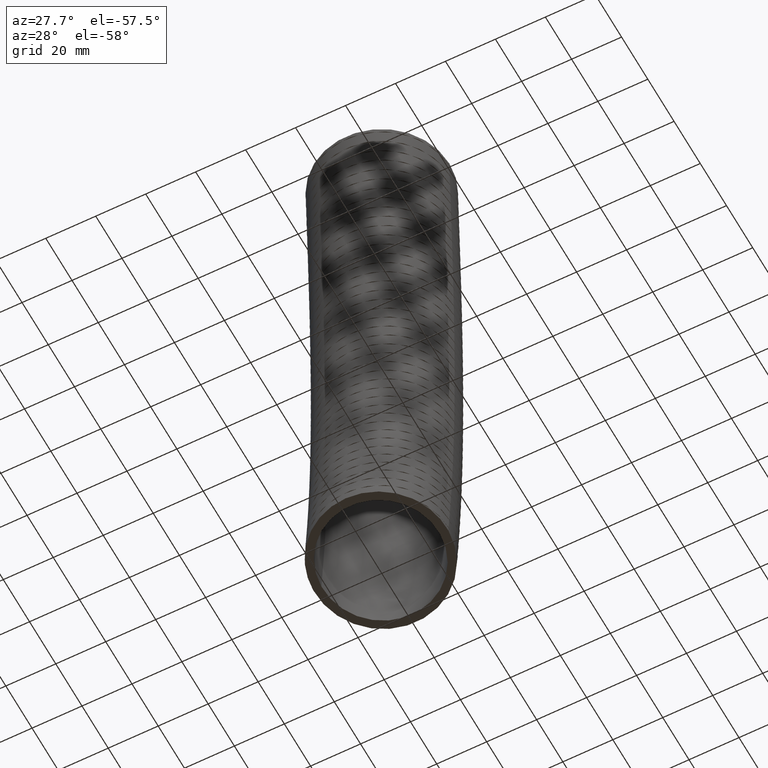
[diagram: clean part render]
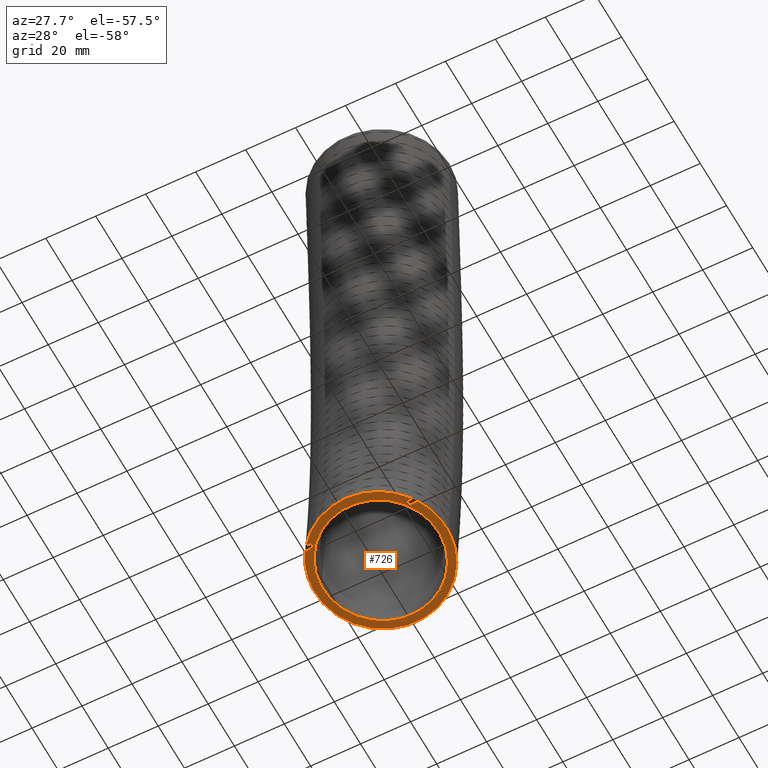
[diagram: same view with one face highlighted and labeled with its STEP entity id]
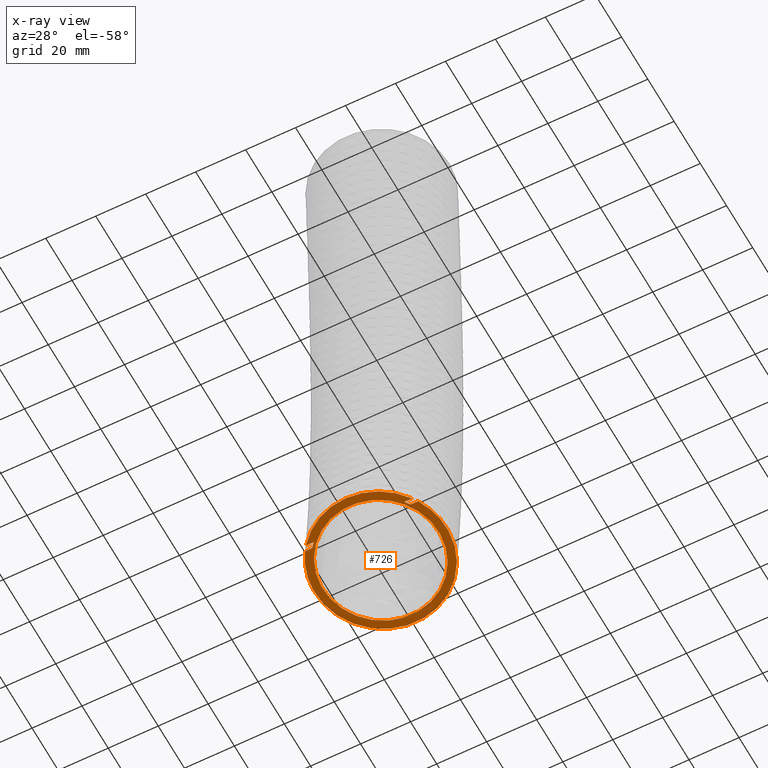
[diagram: x-ray of the same camera — body ghosted, the highlighted face saturated]
A machine part, auxiliary view. The second image highlights one B-rep face of the part: STEP entity #726.
The next image is the same camera in x-ray: the body ghosted, the highlighted face saturated — about 0% of this face is hidden behind the body in this view.
In plain terms, the highlighted planar face has unit normal (0, 0.134, 0.991).
Its self-contained STEP definition (entity closure, byte-faithful):
#600 = VERTEX_POINT ( 'NONE', #6579 ) ;
#617 = VERTEX_POINT ( 'NONE', #6789 ) ;
#622 = EDGE_CURVE ( 'NONE', #630, #617, #7455, .T. ) ;
#630 = VERTEX_POINT ( 'NONE', #7444 ) ;
#651 = EDGE_CURVE ( 'NONE', #654, #600, #7583, .T. ) ;
#654 = VERTEX_POINT ( 'NONE', #7588 ) ;
#685 = EDGE_CURVE ( 'NONE', #686, #654, #7742, .T. ) ;
#686 = VERTEX_POINT ( 'NONE', #7738 ) ;
#716 = ORIENTED_EDGE ( 'NONE', *, *, #7085, .T. ) ;
#717 = EDGE_LOOP ( 'NONE', ( #1886, #1866, #1849, #1852, #1858, #1851, #1952, #1935, #1930, #1921 ) ) ;
#721 = EDGE_CURVE ( 'NONE', #7114, #7100, #7973, .T. ) ;
#723 = ORIENTED_EDGE ( 'NONE', *, *, #721, .T. ) ;
#725 = EDGE_LOOP ( 'NONE', ( #716, #723 ) ) ;
#726 = ADVANCED_FACE ( 'NONE', ( #7968, #7967 ), #7990, .F. ) ;
#727 = EDGE_CURVE ( 'NONE', #731, #686, #7985, .T. ) ;
#731 = VERTEX_POINT ( 'NONE', #7978 ) ;
#1849 = ORIENTED_EDGE ( 'NONE', *, *, #1853, .F. ) ;
#1851 = ORIENTED_EDGE ( 'NONE', *, *, #727, .F. ) ;
#1852 = ORIENTED_EDGE ( 'NONE', *, *, #651, .F. ) ;
#1853 = EDGE_CURVE ( 'NONE', #600, #1857, #8161, .T. ) ;
#1857 = VERTEX_POINT ( 'NONE', #8157 ) ;
#1858 = ORIENTED_EDGE ( 'NONE', *, *, #685, .F. ) ;
#1865 = EDGE_CURVE ( 'NONE', #1867, #630, #8156, .T. ) ;
#1866 = ORIENTED_EDGE ( 'NONE', *, *, #1868, .F. ) ;
#1867 = VERTEX_POINT ( 'NONE', #8152 ) ;
#1868 = EDGE_CURVE ( 'NONE', #1857, #1867, #8149, .T. ) ;
#1886 = ORIENTED_EDGE ( 'NONE', *, *, #1865, .F. ) ;
#1921 = ORIENTED_EDGE ( 'NONE', *, *, #622, .F. ) ;
#1929 = EDGE_CURVE ( 'NONE', #617, #1937, #8288, .T. ) ;
#1930 = ORIENTED_EDGE ( 'NONE', *, *, #1929, .F. ) ;
#1934 = EDGE_CURVE ( 'NONE', #1937, #1956, #2119, .T. ) ;
#1935 = ORIENTED_EDGE ( 'NONE', *, *, #1934, .F. ) ;
#1937 = VERTEX_POINT ( 'NONE', #8438 ) ;
#1945 = EDGE_CURVE ( 'NONE', #1956, #731, #8457, .T. ) ;
#1952 = ORIENTED_EDGE ( 'NONE', *, *, #1945, .F. ) ;
#1956 = VERTEX_POINT ( 'NONE', #8518 ) ;
#2119 =( BOUNDED_CURVE ( )  B_SPLINE_CURVE ( 3, ( #8363, #8362, #8361, #2148 ),
 .UNSPECIFIED., .F., .F. ) 
 B_SPLINE_CURVE_WITH_KNOTS ( ( 4, 4 ),
 ( 0.8268439785480497000, 0.9260890869962005200 ),
 .UNSPECIFIED. ) 
 CURVE ( )  GEOMETRIC_REPRESENTATION_ITEM ( )  RATIONAL_B_SPLINE_CURVE ( ( 1.000000000000000000, 0.9991793691181399800, 0.9991793691181399800, 1.000000000000000000 ) ) 
 REPRESENTATION_ITEM ( '' )  );
#2148 = CARTESIAN_POINT ( 'NONE',  ( 0.7752974674813404300, -0.6082778034935589800, -9.491801248254399000 ) ) ;
#6579 = CARTESIAN_POINT ( 'NONE',  ( -0.8909010816090049400, -0.6082778034935592000, -9.491801248254399000 ) ) ;
#6789 = CARTESIAN_POINT ( 'NONE',  ( 0.8372844202770108900, -0.6822275521257193900, -9.481801248254399200 ) ) ;
#7085 = EDGE_CURVE ( 'NONE', #7100, #7114, #19679, .T. ) ;
#7100 = VERTEX_POINT ( 'NONE', #19693 ) ;
#7114 = VERTEX_POINT ( 'NONE', #19906 ) ;
#7444 = CARTESIAN_POINT ( 'NONE',  ( -0.8372844202770108900, -0.6822275521257193900, -9.481801248254399200 ) ) ;
#7451 = DIRECTION ( 'NONE',  ( 1.000000000000000000, 0.0000000000000000000, 0.0000000000000000000 ) ) ;
#7452 = DIRECTION ( 'NONE',  ( 0.0000000000000000000, 0.1340072641038699800, 0.9909803495364555300 ) ) ;
#7453 = CARTESIAN_POINT ( 'NONE',  ( 0.0000000000000000000, -0.02999999999999988400, -9.569999999999996700 ) ) ;
#7454 = AXIS2_PLACEMENT_3D ( 'NONE', #7453, #7452, #7451 ) ;
#7455 = CIRCLE ( 'NONE', #7454, 1.064999999999999900 ) ;
#7579 = DIRECTION ( 'NONE',  ( 1.000000000000000000, 0.0000000000000000000, 0.0000000000000000000 ) ) ;
#7580 = DIRECTION ( 'NONE',  ( 0.0000000000000000000, 0.1340072641038699800, 0.9909803495364555300 ) ) ;
#7581 = CARTESIAN_POINT ( 'NONE',  ( 0.0000000000000000000, -0.02999999999999988400, -9.569999999999996700 ) ) ;
#7582 = AXIS2_PLACEMENT_3D ( 'NONE', #7581, #7580, #7579 ) ;
#7583 = CIRCLE ( 'NONE', #7582, 1.064999999999999900 ) ;
#7588 = CARTESIAN_POINT ( 'NONE',  ( -1.064999999999999900, -0.02999999999999994300, -9.569999999999996700 ) ) ;
#7738 = CARTESIAN_POINT ( 'NONE',  ( 1.064999999999999900, -0.03000000000000007200, -9.569999999999996700 ) ) ;
#7739 = DIRECTION ( 'NONE',  ( 1.000000000000000000, 0.0000000000000000000, 0.0000000000000000000 ) ) ;
#7740 = DIRECTION ( 'NONE',  ( 0.0000000000000000000, 0.1340072641038699800, 0.9909803495364555300 ) ) ;
#7741 = AXIS2_PLACEMENT_3D ( 'NONE', #7771, #7740, #7739 ) ;
#7742 = CIRCLE ( 'NONE', #7741, 1.064999999999999900 ) ;
#7771 = CARTESIAN_POINT ( 'NONE',  ( 0.0000000000000000000, -0.02999999999999988400, -9.569999999999996700 ) ) ;
#7967 = FACE_OUTER_BOUND ( 'NONE', #717, .T. ) ;
#7968 = FACE_BOUND ( 'NONE', #725, .T. ) ;
#7969 = DIRECTION ( 'NONE',  ( 1.000000000000000000, 0.0000000000000000000, 0.0000000000000000000 ) ) ;
#7970 = DIRECTION ( 'NONE',  ( 0.0000000000000000000, 0.1340072641038699800, 0.9909803495364555300 ) ) ;
#7971 = CARTESIAN_POINT ( 'NONE',  ( 0.0000000000000000000, -0.02999999999999988400, -9.569999999999996700 ) ) ;
#7972 = AXIS2_PLACEMENT_3D ( 'NONE', #7971, #7970, #7969 ) ;
#7973 = CIRCLE ( 'NONE', #7972, 0.9350000000000000500 ) ;
#7978 = CARTESIAN_POINT ( 'NONE',  ( 0.8909010816090049400, -0.6082778034935592000, -9.491801248254399000 ) ) ;
#7981 = DIRECTION ( 'NONE',  ( 1.000000000000000000, 0.0000000000000000000, 0.0000000000000000000 ) ) ;
#7982 = DIRECTION ( 'NONE',  ( 0.0000000000000000000, 0.1340072641038699800, 0.9909803495364555300 ) ) ;
#7983 = CARTESIAN_POINT ( 'NONE',  ( 0.0000000000000000000, -0.02999999999999988400, -9.569999999999996700 ) ) ;
#7984 = AXIS2_PLACEMENT_3D ( 'NONE', #7983, #7982, #7981 ) ;
#7985 = CIRCLE ( 'NONE', #7984, 1.064999999999999900 ) ;
#7986 = DIRECTION ( 'NONE',  ( 1.000000000000000000, 0.0000000000000000000, 0.0000000000000000000 ) ) ;
#7987 = DIRECTION ( 'NONE',  ( 0.0000000000000000000, 0.1340072641038700100, 0.9909803495364556400 ) ) ;
#7988 = CARTESIAN_POINT ( 'NONE',  ( 0.0000000000000000000, -0.02999999999999988400, -9.569999999999996700 ) ) ;
#7989 = AXIS2_PLACEMENT_3D ( 'NONE', #7988, #7987, #7986 ) ;
#7990 = PLANE ( 'NONE',  #7989 ) ;
#8143 = CARTESIAN_POINT ( 'NONE',  ( -0.7137238438844885100, -0.6822275521257199500, -9.481801248254399200 ) ) ;
#8144 = CARTESIAN_POINT ( 'NONE',  ( -0.7354636506998639700, -0.6586066568287077800, -9.484995430213626100 ) ) ;
#8145 = CARTESIAN_POINT ( 'NONE',  ( -0.7560050488044560700, -0.6339364955217584600, -9.488331501229858100 ) ) ;
#8146 = CARTESIAN_POINT ( 'NONE',  ( -0.7752974674813404300, -0.6082778034935589800, -9.491801248254399000 ) ) ;
#8149 =( BOUNDED_CURVE ( )  B_SPLINE_CURVE ( 3, ( #8146, #8145, #8144, #8143 ),
 .UNSPECIFIED., .F., .T. ) 
 B_SPLINE_CURVE_WITH_KNOTS ( ( 4, 4 ),
 ( 5.357096220183385600, 5.456341328631536300 ),
 .UNSPECIFIED. ) 
 CURVE ( )  GEOMETRIC_REPRESENTATION_ITEM ( )  RATIONAL_B_SPLINE_CURVE ( ( 1.000000000000000000, 0.9991793691181399800, 0.9991793691181399800, 1.000000000000000000 ) ) 
 REPRESENTATION_ITEM ( '' )  );
#8152 = CARTESIAN_POINT ( 'NONE',  ( -0.7137238438844885100, -0.6822275521257199500, -9.481801248254399200 ) ) ;
#8153 = DIRECTION ( 'NONE',  ( -1.000000000000000000, 0.0000000000000000000, 0.0000000000000000000 ) ) ;
#8154 = VECTOR ( 'NONE', #8153, 39.37007874015748100 ) ;
#8155 = CARTESIAN_POINT ( 'NONE',  ( 0.0000000000000000000, -0.6822275521257193900, -9.481801248254399200 ) ) ;
#8156 = LINE ( 'NONE', #8155, #8154 ) ;
#8157 = CARTESIAN_POINT ( 'NONE',  ( -0.7752974674813404300, -0.6082778034935589800, -9.491801248254399000 ) ) ;
#8158 = DIRECTION ( 'NONE',  ( 1.000000000000000000, 0.0000000000000000000, 0.0000000000000000000 ) ) ;
#8159 = VECTOR ( 'NONE', #8158, 39.37007874015748100 ) ;
#8160 = CARTESIAN_POINT ( 'NONE',  ( 0.0000000000000000000, -0.6082778034935589800, -9.491801248254399000 ) ) ;
#8161 = LINE ( 'NONE', #8160, #8159 ) ;
#8283 = DIRECTION ( 'NONE',  ( -1.000000000000000000, 0.0000000000000000000, 0.0000000000000000000 ) ) ;
#8284 = VECTOR ( 'NONE', #8283, 39.37007874015748100 ) ;
#8285 = CARTESIAN_POINT ( 'NONE',  ( 0.0000000000000000000, -0.6822275521257193900, -9.481801248254399200 ) ) ;
#8288 = LINE ( 'NONE', #8285, #8284 ) ;
#8361 = CARTESIAN_POINT ( 'NONE',  ( 0.7560050488044558500, -0.6339364955217587900, -9.488331501229858100 ) ) ;
#8362 = CARTESIAN_POINT ( 'NONE',  ( 0.7354636506998636400, -0.6586066568287080000, -9.484995430213626100 ) ) ;
#8363 = CARTESIAN_POINT ( 'NONE',  ( 0.7137238438844885100, -0.6822275521257199500, -9.481801248254399200 ) ) ;
#8438 = CARTESIAN_POINT ( 'NONE',  ( 0.7137238438844885100, -0.6822275521257199500, -9.481801248254399200 ) ) ;
#8454 = DIRECTION ( 'NONE',  ( 1.000000000000000000, 0.0000000000000000000, 0.0000000000000000000 ) ) ;
#8455 = VECTOR ( 'NONE', #8454, 39.37007874015748100 ) ;
#8456 = CARTESIAN_POINT ( 'NONE',  ( 0.0000000000000000000, -0.6082778034935589800, -9.491801248254399000 ) ) ;
#8457 = LINE ( 'NONE', #8456, #8455 ) ;
#8518 = CARTESIAN_POINT ( 'NONE',  ( 0.7752974674813404300, -0.6082778034935589800, -9.491801248254399000 ) ) ;
#19675 = DIRECTION ( 'NONE',  ( 1.000000000000000000, 0.0000000000000000000, 0.0000000000000000000 ) ) ;
#19676 = DIRECTION ( 'NONE',  ( 0.0000000000000000000, 0.1340072641038699800, 0.9909803495364555300 ) ) ;
#19677 = CARTESIAN_POINT ( 'NONE',  ( 0.0000000000000000000, -0.02999999999999988400, -9.569999999999996700 ) ) ;
#19678 = AXIS2_PLACEMENT_3D ( 'NONE', #19677, #19676, #19675 ) ;
#19679 = CIRCLE ( 'NONE', #19678, 0.9350000000000000500 ) ;
#19693 = CARTESIAN_POINT ( 'NONE',  ( 0.9350000000000000500, -0.02999999999999988400, -9.569999999999996700 ) ) ;
#19906 = CARTESIAN_POINT ( 'NONE',  ( -0.9350000000000001600, -0.02999999999999995700, -9.569999999999996700 ) ) ;